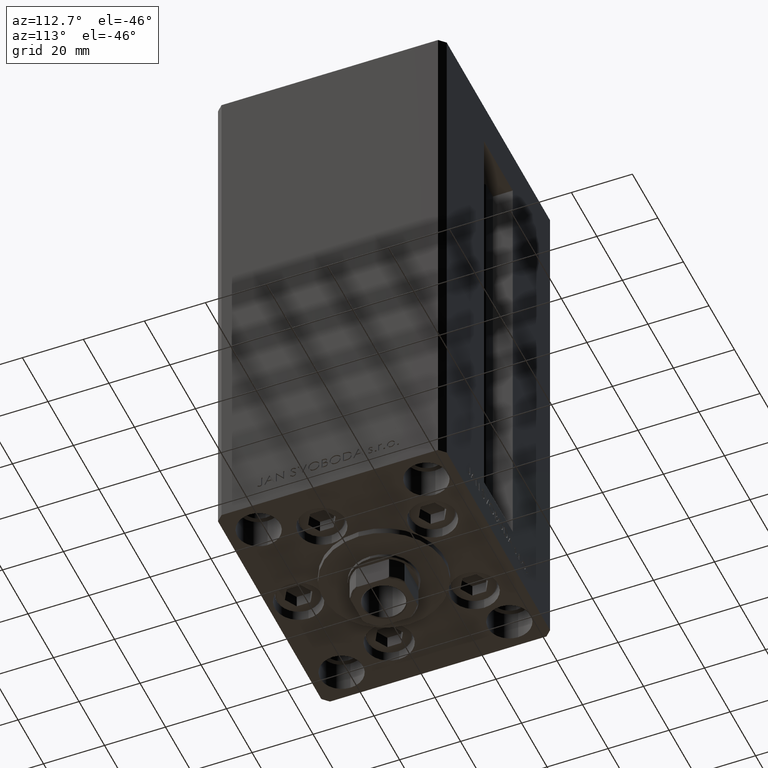
[diagram: clean part render]
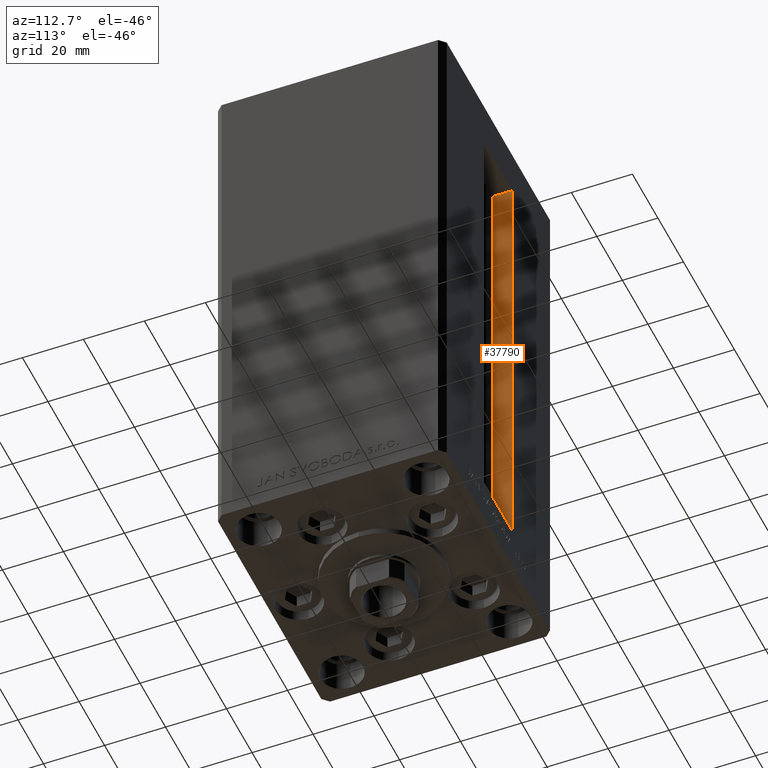
[diagram: same view with one face highlighted and labeled with its STEP entity id]
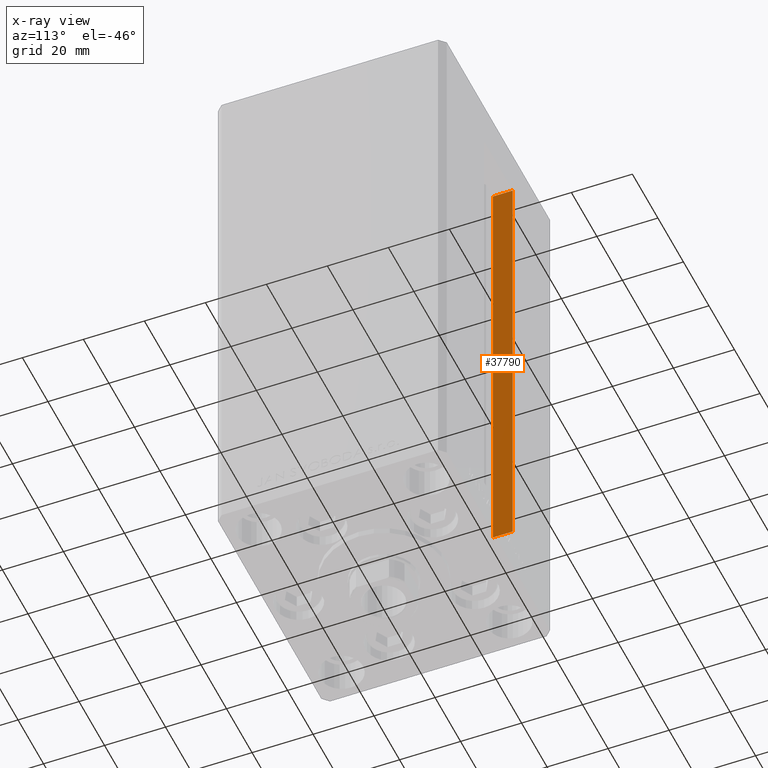
[diagram: x-ray of the same camera — body ghosted, the highlighted face saturated]
A machine part, auxiliary view. The second image highlights one B-rep face of the part: STEP entity #37790.
The next image is the same camera in x-ray: the body ghosted, the highlighted face saturated — about 0% of this face is hidden behind the body in this view.
In plain terms, the highlighted planar face has unit normal (-1, 0, 0).
Its self-contained STEP definition (entity closure, byte-faithful):
#383 = EDGE_CURVE ( 'NONE', #48535, #4890, #17499, .T. ) ;
#525 = DIRECTION ( 'NONE',  ( -1.000000000000000000, 0.000000000000000000, 0.000000000000000000 ) ) ;
#1121 = CARTESIAN_POINT ( 'NONE',  ( -11.25000000000000000, 30.99999999999999289, 148.5000000000000000 ) ) ;
#3166 = VERTEX_POINT ( 'NONE', #10780 ) ;
#4812 = DIRECTION ( 'NONE',  ( -0.000000000000000000, -0.000000000000000000, 1.000000000000000000 ) ) ;
#4890 = VERTEX_POINT ( 'NONE', #1121 ) ;
#5519 = ORIENTED_EDGE ( 'NONE', *, *, #34922, .T. ) ;
#5796 = LINE ( 'NONE', #24117, #8432 ) ;
#6367 = CARTESIAN_POINT ( 'NONE',  ( -11.25000000000000000, 37.50000000000000000, 0.000000000000000000 ) ) ;
#8191 = FACE_OUTER_BOUND ( 'NONE', #17325, .T. ) ;
#8432 = VECTOR ( 'NONE', #4812, 1000.000000000000000 ) ;
#9142 = VERTEX_POINT ( 'NONE', #6367 ) ;
#10780 = CARTESIAN_POINT ( 'NONE',  ( -11.25000000000000000, 37.50000000000000000, 148.5000000000000000 ) ) ;
#15123 = ORIENTED_EDGE ( 'NONE', *, *, #383, .F. ) ;
#17325 = EDGE_LOOP ( 'NONE', ( #15123, #33506, #5519, #40309 ) ) ;
#17499 = LINE ( 'NONE', #39779, #21317 ) ;
#17872 = LINE ( 'NONE', #25296, #30198 ) ;
#18604 = DIRECTION ( 'NONE',  ( 0.000000000000000000, 1.000000000000000000, 0.000000000000000000 ) ) ;
#19450 = EDGE_CURVE ( 'NONE', #4890, #3166, #17872, .T. ) ;
#21317 = VECTOR ( 'NONE', #28640, 1000.000000000000000 ) ;
#22329 = VECTOR ( 'NONE', #26839, 1000.000000000000000 ) ;
#23128 = LINE ( 'NONE', #46620, #22329 ) ;
#24117 = CARTESIAN_POINT ( 'NONE',  ( -11.25000000000000000, 37.50000000000000000, 0.000000000000000000 ) ) ;
#25296 = CARTESIAN_POINT ( 'NONE',  ( -11.25000000000000000, 0.000000000000000000, 148.5000000000000000 ) ) ;
#26839 = DIRECTION ( 'NONE',  ( -0.000000000000000000, -1.000000000000000000, -0.000000000000000000 ) ) ;
#28640 = DIRECTION ( 'NONE',  ( -0.000000000000000000, -0.000000000000000000, 1.000000000000000000 ) ) ;
#28648 = CARTESIAN_POINT ( 'NONE',  ( -11.25000000000000000, 30.99999999999999289, 0.000000000000000000 ) ) ;
#30198 = VECTOR ( 'NONE', #18604, 1000.000000000000000 ) ;
#33506 = ORIENTED_EDGE ( 'NONE', *, *, #45985, .F. ) ;
#34648 = CARTESIAN_POINT ( 'NONE',  ( -11.25000000000000000, 30.99999999999999289, 0.000000000000000000 ) ) ;
#34922 = EDGE_CURVE ( 'NONE', #9142, #3166, #5796, .T. ) ;
#37790 = ADVANCED_FACE ( 'NONE', ( #8191 ), #38371, .F. ) ;
#38371 = PLANE ( 'NONE',  #44079 ) ;
#39779 = CARTESIAN_POINT ( 'NONE',  ( -11.25000000000000000, 30.99999999999999289, 0.000000000000000000 ) ) ;
#40309 = ORIENTED_EDGE ( 'NONE', *, *, #19450, .F. ) ;
#44079 = AXIS2_PLACEMENT_3D ( 'NONE', #34648, #525, #46046 ) ;
#45985 = EDGE_CURVE ( 'NONE', #9142, #48535, #23128, .T. ) ;
#46046 = DIRECTION ( 'NONE',  ( 0.000000000000000000, 0.000000000000000000, 1.000000000000000000 ) ) ;
#46620 = CARTESIAN_POINT ( 'NONE',  ( -11.25000000000000000, 30.99999999999999289, 0.000000000000000000 ) ) ;
#48535 = VERTEX_POINT ( 'NONE', #28648 ) ;